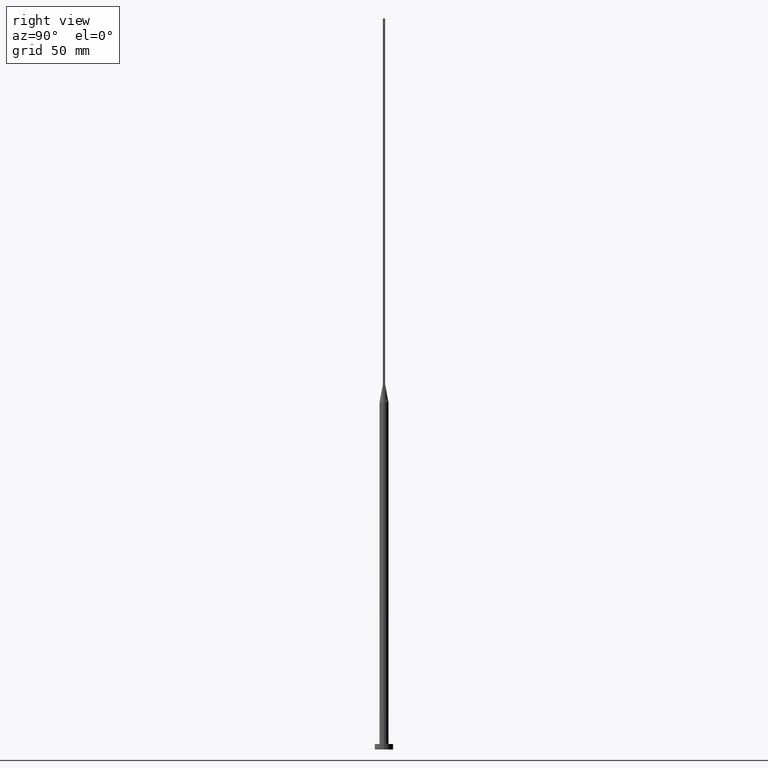
[diagram: clean part render]
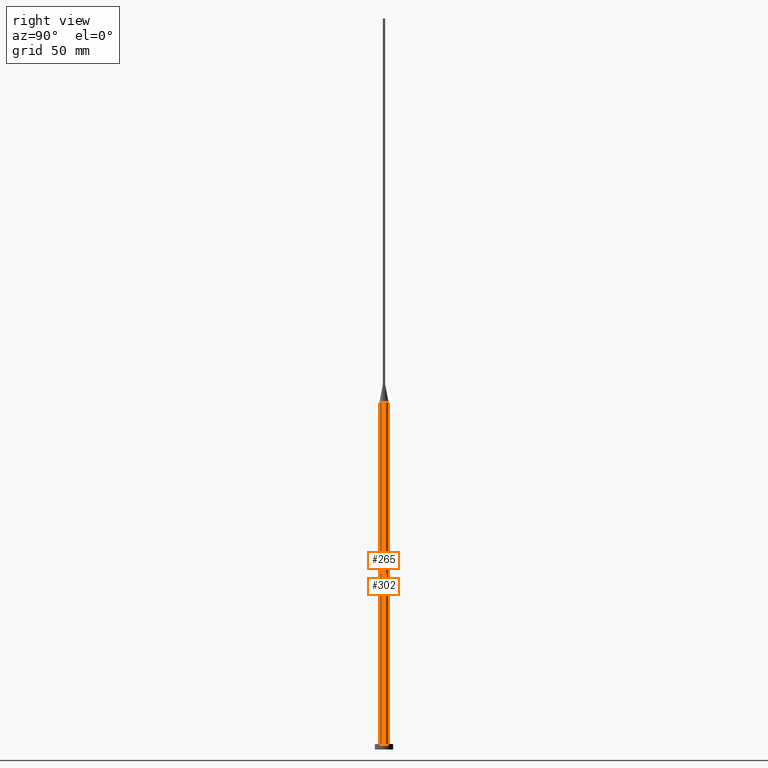
[diagram: same view with one multi-face feature highlighted, each face labeled with its STEP entity id]
A machine part, right view. The highlighted faces form ONE feature: a constant-radius fillet chain: 2 tangent blend faces with common blend radius 2.5 mm. The faces share edges in the B-rep.
Their STEP definitions:
[1] entity #265 (Cylinder):
#2 = AXIS2_PLACEMENT_3D ( 'NONE', #529, #130, #193 ) ;
#10 = VERTEX_POINT ( 'NONE', #88 ) ;
#35 = EDGE_LOOP ( 'NONE', ( #263, #398, #274, #168, #315, #217 ) ) ;
#50 = CIRCLE ( 'NONE', #528, 2.500000000000000000 ) ;
#59 = DIRECTION ( 'NONE',  ( 0.000000000000000000, 0.000000000000000000, 1.000000000000000000 ) ) ;
#66 = CARTESIAN_POINT ( 'NONE',  ( 0.000000000000000000, 0.000000000000000000, 190.0000000000000000 ) ) ;
#68 = VECTOR ( 'NONE', #86, 1000.000000000000000 ) ;
#79 = CARTESIAN_POINT ( 'NONE',  ( 0.000000000000000000, 0.000000000000000000, 3.000000000000000000 ) ) ;
#86 = DIRECTION ( 'NONE',  ( -0.000000000000000000, -0.000000000000000000, -1.000000000000000000 ) ) ;
#88 = CARTESIAN_POINT ( 'NONE',  ( 2.500000000000000000, 3.061616997868383141E-16, 3.000000000000000000 ) ) ;
#100 = AXIS2_PLACEMENT_3D ( 'NONE', #317, #59, #279 ) ;
#102 = DIRECTION ( 'NONE',  ( 0.000000000000000000, 0.000000000000000000, 1.000000000000000000 ) ) ;
#106 = EDGE_CURVE ( 'NONE', #124, #10, #336, .T. ) ;
#119 = CARTESIAN_POINT ( 'NONE',  ( -2.415759998437587708, -0.6442033382925431706, 190.0000000000000000 ) ) ;
#120 = DIRECTION ( 'NONE',  ( 1.000000000000000000, 0.000000000000000000, 0.000000000000000000 ) ) ;
#124 = VERTEX_POINT ( 'NONE', #296 ) ;
#130 = DIRECTION ( 'NONE',  ( 0.000000000000000000, 0.000000000000000000, 1.000000000000000000 ) ) ;
#136 = CARTESIAN_POINT ( 'NONE',  ( 2.415783834663384866, -0.6442097370852554183, 190.0000000000000000 ) ) ;
#155 = DIRECTION ( 'NONE',  ( -0.000000000000000000, -0.000000000000000000, -1.000000000000000000 ) ) ;
#158 = DIRECTION ( 'NONE',  ( 0.000000000000000000, 0.000000000000000000, 1.000000000000000000 ) ) ;
#168 = ORIENTED_EDGE ( 'NONE', *, *, #243, .F. ) ;
#173 = AXIS2_PLACEMENT_3D ( 'NONE', #66, #327, #465 ) ;
#193 = DIRECTION ( 'NONE',  ( 1.000000000000000000, 0.000000000000000000, 0.000000000000000000 ) ) ;
#211 = VERTEX_POINT ( 'NONE', #119 ) ;
#217 = ORIENTED_EDGE ( 'NONE', *, *, #433, .T. ) ;
#219 = VECTOR ( 'NONE', #155, 1000.000000000000000 ) ;
#224 = VERTEX_POINT ( 'NONE', #536 ) ;
#228 = CYLINDRICAL_SURFACE ( 'NONE', #173, 2.500000000000000000 ) ;
#230 = CARTESIAN_POINT ( 'NONE',  ( -2.500000000000000000, 0.000000000000000000, 190.0000000000000000 ) ) ;
#237 = CIRCLE ( 'NONE', #2, 2.500000000000000000 ) ;
#243 = EDGE_CURVE ( 'NONE', #411, #211, #237, .T. ) ;
#252 = EDGE_CURVE ( 'NONE', #411, #224, #371, .T. ) ;
#263 = ORIENTED_EDGE ( 'NONE', *, *, #106, .F. ) ;
#265 = ADVANCED_FACE ( 'NONE', ( #278 ), #228, .T. ) ;
#272 = DIRECTION ( 'NONE',  ( 1.000000000000000000, 3.552713678800500929E-15, 0.000000000000000000 ) ) ;
#274 = ORIENTED_EDGE ( 'NONE', *, *, #546, .F. ) ;
#278 = FACE_OUTER_BOUND ( 'NONE', #35, .T. ) ;
#279 = DIRECTION ( 'NONE',  ( 1.000000000000000000, 0.000000000000000000, 0.000000000000000000 ) ) ;
#296 = CARTESIAN_POINT ( 'NONE',  ( 2.499999999999999556, 1.077931475469669239E-17, 190.0000000000000000 ) ) ;
#315 = ORIENTED_EDGE ( 'NONE', *, *, #252, .T. ) ;
#317 = CARTESIAN_POINT ( 'NONE',  ( 0.000000000000000000, 0.000000000000000000, 190.0000000000000000 ) ) ;
#322 = CARTESIAN_POINT ( 'NONE',  ( 0.000000000000000000, 0.000000000000000000, 190.0000000000000000 ) ) ;
#327 = DIRECTION ( 'NONE',  ( -0.000000000000000000, -0.000000000000000000, -1.000000000000000000 ) ) ;
#332 = CARTESIAN_POINT ( 'NONE',  ( -2.499999999999999556, -1.638601646481158325E-16, 190.0000000000000000 ) ) ;
#336 = LINE ( 'NONE', #443, #68 ) ;
#347 = EDGE_CURVE ( 'NONE', #502, #124, #356, .T. ) ;
#356 = CIRCLE ( 'NONE', #491, 2.500000000000000000 ) ;
#371 = LINE ( 'NONE', #230, #219 ) ;
#398 = ORIENTED_EDGE ( 'NONE', *, *, #347, .F. ) ;
#411 = VERTEX_POINT ( 'NONE', #332 ) ;
#433 = EDGE_CURVE ( 'NONE', #224, #10, #50, .T. ) ;
#443 = CARTESIAN_POINT ( 'NONE',  ( 2.500000000000000000, 3.061616997868383141E-16, 190.0000000000000000 ) ) ;
#465 = DIRECTION ( 'NONE',  ( -1.000000000000000000, 0.000000000000000000, 0.000000000000000000 ) ) ;
#491 = AXIS2_PLACEMENT_3D ( 'NONE', #322, #102, #272 ) ;
#502 = VERTEX_POINT ( 'NONE', #136 ) ;
#528 = AXIS2_PLACEMENT_3D ( 'NONE', #79, #158, #120 ) ;
#529 = CARTESIAN_POINT ( 'NONE',  ( 0.000000000000000000, 0.000000000000000000, 190.0000000000000000 ) ) ;
#536 = CARTESIAN_POINT ( 'NONE',  ( -2.500000000000000000, 0.000000000000000000, 3.000000000000000000 ) ) ;
#544 = CIRCLE ( 'NONE', #100, 2.500000000000000000 ) ;
#546 = EDGE_CURVE ( 'NONE', #211, #502, #544, .T. ) ;
[2] entity #302 (Cylinder):
#10 = VERTEX_POINT ( 'NONE', #88 ) ;
#20 = CARTESIAN_POINT ( 'NONE',  ( -2.042400361660746899, 1.461628045180436430, 190.0000000000000284 ) ) ;
#21 = DIRECTION ( 'NONE',  ( 1.000000000000000000, 0.000000000000000000, 0.000000000000000000 ) ) ;
#24 = CARTESIAN_POINT ( 'NONE',  ( 2.415751997725693823, 0.6442011318043520118, 190.0000000000000000 ) ) ;
#31 = ORIENTED_EDGE ( 'NONE', *, *, #252, .F. ) ;
#32 = EDGE_CURVE ( 'NONE', #390, #411, #137, .T. ) ;
#54 = DIRECTION ( 'NONE',  ( -0.000000000000000000, -0.000000000000000000, -1.000000000000000000 ) ) ;
#62 = ORIENTED_EDGE ( 'NONE', *, *, #383, .F. ) ;
#68 = VECTOR ( 'NONE', #86, 1000.000000000000000 ) ;
#71 = CARTESIAN_POINT ( 'NONE',  ( -1.466504377161500727, 2.043814966248090226, 190.0000000000000000 ) ) ;
#76 = DIRECTION ( 'NONE',  ( 1.000000000000000000, 0.000000000000000000, 0.000000000000000000 ) ) ;
#78 = CIRCLE ( 'NONE', #225, 2.500000000000000000 ) ;
#86 = DIRECTION ( 'NONE',  ( -0.000000000000000000, -0.000000000000000000, -1.000000000000000000 ) ) ;
#88 = CARTESIAN_POINT ( 'NONE',  ( 2.500000000000000000, 3.061616997868383141E-16, 3.000000000000000000 ) ) ;
#95 = ORIENTED_EDGE ( 'NONE', *, *, #106, .T. ) ;
#106 = EDGE_CURVE ( 'NONE', #124, #10, #336, .T. ) ;
#115 = CARTESIAN_POINT ( 'NONE',  ( -0.6394215159088052491, 2.436483607037785326, 190.0000000000000000 ) ) ;
#117 = CARTESIAN_POINT ( 'NONE',  ( -2.415775789045403688, 0.6442075170323000588, 190.0000000000000000 ) ) ;
#123 = CARTESIAN_POINT ( 'NONE',  ( -2.415775789045403688, 0.6442075170323000588, 190.0000000000000000 ) ) ;
#124 = VERTEX_POINT ( 'NONE', #296 ) ;
#126 = B_SPLINE_CURVE_WITH_KNOTS ( 'NONE', 3,
 ( #553, #430, #246, #556, #164, #283, #159, #200, #333, #517, #115, #204, #71, #434, #20, #380, #335, #117 ),
 .UNSPECIFIED., .F., .F.,
 ( 4, 2, 2, 2, 2, 2, 2, 2, 4 ),
 ( 0.000000000000000000, 0.1249999999999999445, 0.2499999999999998890, 0.3749999999999998335, 0.4999999999999997780, 0.6249999999999997780, 0.7499999999999997780, 0.8749999999999997780, 1.000000000000000000 ),
 .UNSPECIFIED. ) ;
#137 = CIRCLE ( 'NONE', #464, 2.500000000000000000 ) ;
#155 = DIRECTION ( 'NONE',  ( -0.000000000000000000, -0.000000000000000000, -1.000000000000000000 ) ) ;
#159 = CARTESIAN_POINT ( 'NONE',  ( 1.212939335911088934, 2.207734225347457002, 189.9999999999999432 ) ) ;
#164 = CARTESIAN_POINT ( 'NONE',  ( 1.880930080310023289, 1.670304384679167642, 189.9999999999999716 ) ) ;
#167 = CARTESIAN_POINT ( 'NONE',  ( 0.000000000000000000, 0.000000000000000000, 190.0000000000000000 ) ) ;
#181 = CYLINDRICAL_SURFACE ( 'NONE', #573, 2.500000000000000000 ) ;
#190 = AXIS2_PLACEMENT_3D ( 'NONE', #167, #198, #478 ) ;
#198 = DIRECTION ( 'NONE',  ( 0.000000000000000000, 0.000000000000000000, 1.000000000000000000 ) ) ;
#200 = CARTESIAN_POINT ( 'NONE',  ( 0.6394215159088050271, 2.436483607037784882, 189.9999999999999432 ) ) ;
#204 = CARTESIAN_POINT ( 'NONE',  ( -1.212939335911090044, 2.207734225347456114, 189.9999999999999147 ) ) ;
#219 = VECTOR ( 'NONE', #155, 1000.000000000000000 ) ;
#220 = EDGE_CURVE ( 'NONE', #10, #224, #78, .T. ) ;
#224 = VERTEX_POINT ( 'NONE', #536 ) ;
#225 = AXIS2_PLACEMENT_3D ( 'NONE', #292, #476, #76 ) ;
#230 = CARTESIAN_POINT ( 'NONE',  ( -2.500000000000000000, 0.000000000000000000, 190.0000000000000000 ) ) ;
#244 = CARTESIAN_POINT ( 'NONE',  ( 0.000000000000000000, 0.000000000000000000, 190.0000000000000000 ) ) ;
#246 = CARTESIAN_POINT ( 'NONE',  ( 2.283437435282019923, 1.045786430836911585, 190.0000000000000284 ) ) ;
#252 = EDGE_CURVE ( 'NONE', #411, #224, #371, .T. ) ;
#283 = CARTESIAN_POINT ( 'NONE',  ( 1.466504377161500949, 2.043814966248089782, 189.9999999999999716 ) ) ;
#292 = CARTESIAN_POINT ( 'NONE',  ( 0.000000000000000000, 0.000000000000000000, 3.000000000000000000 ) ) ;
#296 = CARTESIAN_POINT ( 'NONE',  ( 2.499999999999999556, 1.077931475469669239E-17, 190.0000000000000000 ) ) ;
#297 = EDGE_LOOP ( 'NONE', ( #62, #95, #343, #31, #461, #547 ) ) ;
#302 = ADVANCED_FACE ( 'NONE', ( #427 ), #181, .T. ) ;
#332 = CARTESIAN_POINT ( 'NONE',  ( -2.499999999999999556, -1.638601646481158325E-16, 190.0000000000000000 ) ) ;
#333 = CARTESIAN_POINT ( 'NONE',  ( 0.3201159637850002349, 2.500000000000000888, 189.9999999999999716 ) ) ;
#335 = CARTESIAN_POINT ( 'NONE',  ( -2.363720129086103849, 0.8386587010896275896, 190.0000000000000853 ) ) ;
#336 = LINE ( 'NONE', #443, #68 ) ;
#343 = ORIENTED_EDGE ( 'NONE', *, *, #220, .T. ) ;
#361 = DIRECTION ( 'NONE',  ( -1.000000000000000000, 0.000000000000000000, 0.000000000000000000 ) ) ;
#371 = LINE ( 'NONE', #230, #219 ) ;
#380 = CARTESIAN_POINT ( 'NONE',  ( -2.283437435282019923, 1.045786430836911141, 190.0000000000000000 ) ) ;
#383 = EDGE_CURVE ( 'NONE', #124, #494, #423, .T. ) ;
#390 = VERTEX_POINT ( 'NONE', #123 ) ;
#411 = VERTEX_POINT ( 'NONE', #332 ) ;
#423 = CIRCLE ( 'NONE', #190, 2.500000000000000000 ) ;
#427 = FACE_OUTER_BOUND ( 'NONE', #297, .T. ) ;
#430 = CARTESIAN_POINT ( 'NONE',  ( 2.363720129086103405, 0.8386587010896275896, 190.0000000000000000 ) ) ;
#434 = CARTESIAN_POINT ( 'NONE',  ( -1.880930080310023733, 1.670304384679167420, 189.9999999999999432 ) ) ;
#443 = CARTESIAN_POINT ( 'NONE',  ( 2.500000000000000000, 3.061616997868383141E-16, 190.0000000000000000 ) ) ;
#458 = EDGE_CURVE ( 'NONE', #494, #390, #126, .T. ) ;
#460 = CARTESIAN_POINT ( 'NONE',  ( 0.000000000000000000, 0.000000000000000000, 190.0000000000000000 ) ) ;
#461 = ORIENTED_EDGE ( 'NONE', *, *, #32, .F. ) ;
#464 = AXIS2_PLACEMENT_3D ( 'NONE', #244, #550, #21 ) ;
#476 = DIRECTION ( 'NONE',  ( 0.000000000000000000, 0.000000000000000000, 1.000000000000000000 ) ) ;
#478 = DIRECTION ( 'NONE',  ( 1.000000000000000000, 0.000000000000000000, 0.000000000000000000 ) ) ;
#494 = VERTEX_POINT ( 'NONE', #24 ) ;
#517 = CARTESIAN_POINT ( 'NONE',  ( -0.3201159637850009010, 2.500000000000000444, 189.9999999999999716 ) ) ;
#536 = CARTESIAN_POINT ( 'NONE',  ( -2.500000000000000000, 0.000000000000000000, 3.000000000000000000 ) ) ;
#547 = ORIENTED_EDGE ( 'NONE', *, *, #458, .F. ) ;
#550 = DIRECTION ( 'NONE',  ( 0.000000000000000000, 0.000000000000000000, 1.000000000000000000 ) ) ;
#553 = CARTESIAN_POINT ( 'NONE',  ( 2.415751997725693823, 0.6442011318043520118, 190.0000000000000000 ) ) ;
#556 = CARTESIAN_POINT ( 'NONE',  ( 2.042400361660745567, 1.461628045180436430, 189.9999999999999432 ) ) ;
#573 = AXIS2_PLACEMENT_3D ( 'NONE', #460, #54, #361 ) ;